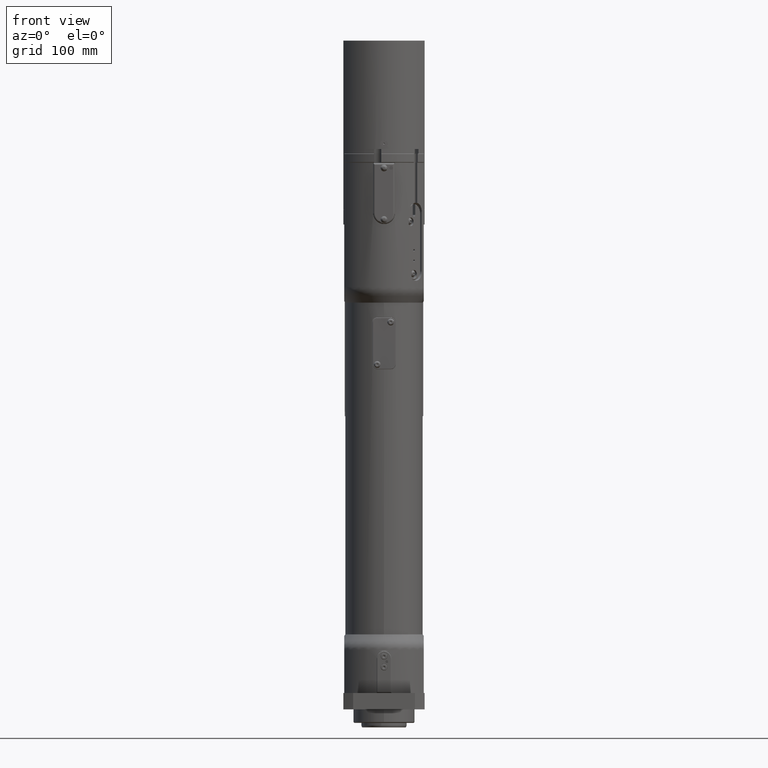
[diagram: clean part render]
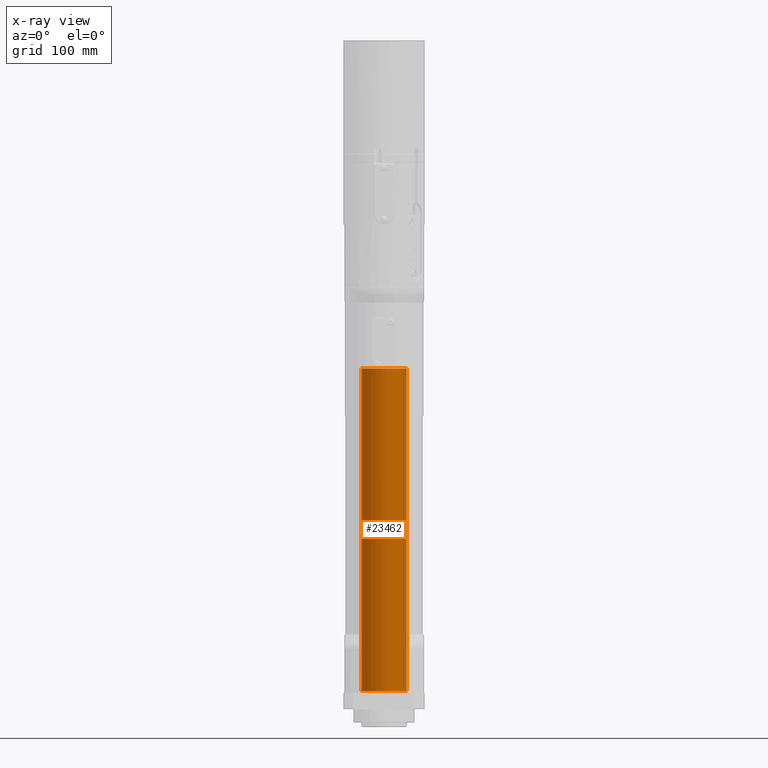
[diagram: x-ray — body ghosted, one internal face saturated and labeled with its STEP entity id]
A machine part, front view, then the same camera in x-ray: the body is ghosted and one INTERNAL B-rep face — a face not visible from any outside direction — is saturated and labeled: STEP entity #23462.
In plain terms, the highlighted cylindrical surface (bore or boss wall) has radius 25 mm, axis along (0, -0, -1).
Its self-contained STEP definition (entity closure, byte-faithful):
#4962=FACE_BOUND('',#6723,.T.);
#5316=FACE_OUTER_BOUND('',#6722,.T.);
#6722=EDGE_LOOP('',(#15135));
#6723=EDGE_LOOP('',(#15136));
#8482=CIRCLE('',#24940,25.);
#8483=CIRCLE('',#24941,25.);
#9639=VERTEX_POINT('',#34615);
#9640=VERTEX_POINT('',#34617);
#11840=EDGE_CURVE('',#9639,#9639,#8482,.T.);
#11841=EDGE_CURVE('',#9640,#9640,#8483,.T.);
#15135=ORIENTED_EDGE('',*,*,#11840,.F.);
#15136=ORIENTED_EDGE('',*,*,#11841,.F.);
#21717=CYLINDRICAL_SURFACE('',#24939,25.);
#23462=ADVANCED_FACE('',(#5316,#4962),#21717,.F.);
#24939=AXIS2_PLACEMENT_3D('',#34614,#27581,#27582);
#24940=AXIS2_PLACEMENT_3D('',#34616,#27583,#27584);
#24941=AXIS2_PLACEMENT_3D('',#34618,#27585,#27586);
#27581=DIRECTION('center_axis',(-8.32667268468869E-17,-8.55743202188421E-32,
-1.));
#27582=DIRECTION('ref_axis',(-1.,2.77555756156289E-16,8.32667268468869E-17));
#27583=DIRECTION('center_axis',(-8.32667268468869E-17,-8.55743202188421E-32,
-1.));
#27584=DIRECTION('ref_axis',(-1.,2.77555756156289E-16,8.32667268468869E-17));
#27585=DIRECTION('center_axis',(8.32667268468869E-17,8.55743202188421E-32,
1.));
#27586=DIRECTION('ref_axis',(-1.,2.77555756156289E-16,8.32667268468869E-17));
#34614=CARTESIAN_POINT('Origin',(2.87469353876801E-12,1.54889519596104E-29,
181.));
#34615=CARTESIAN_POINT('',(-24.9999999999971,6.93889390390726E-15,377.));
#34616=CARTESIAN_POINT('Origin',(2.89101381723E-12,3.22615187225035E-29,
377.));
#34617=CARTESIAN_POINT('',(25.0000000000029,-3.87727690603884E-15,20.));
#34618=CARTESIAN_POINT('Origin',(2.86128759574567E-12,1.71148640437684E-30,
20.));